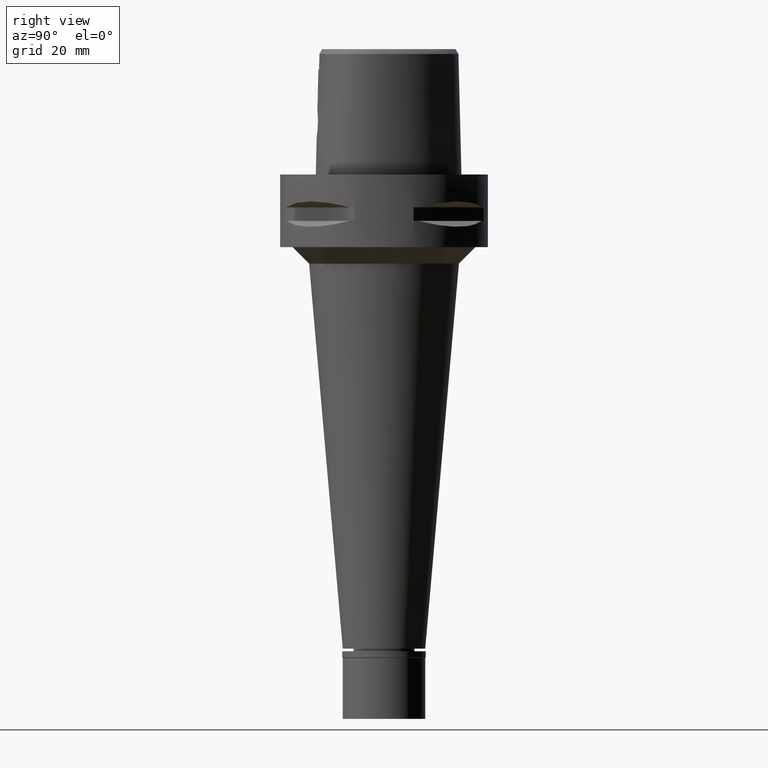
[diagram: clean part render]
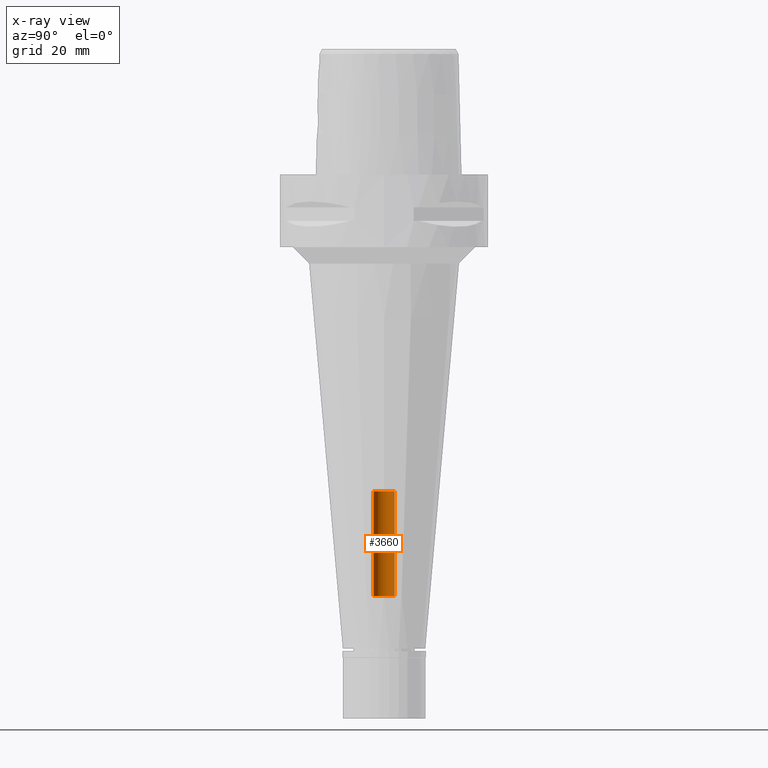
[diagram: x-ray — body ghosted, one internal face saturated and labeled with its STEP entity id]
A machine part, right view, then the same camera in x-ray: the body is ghosted and one INTERNAL B-rep face — a face not visible from any outside direction — is saturated and labeled: STEP entity #3660.
In plain terms, the highlighted cylindrical surface (edge-blend (fillet) strip) has radius 3.2 mm, axis along (0, 0, -1).
Its self-contained STEP definition (entity closure, byte-faithful):
#151 = EDGE_CURVE ( 'NONE', #1242, #304, #432, .T. ) ;
#221 = CARTESIAN_POINT ( 'NONE',  ( 0.0000000000000000000, -3.200000000000000178, -127.7999999999999972 ) ) ;
#304 = VERTEX_POINT ( 'NONE', #1400 ) ;
#432 = CIRCLE ( 'NONE', #3722, 3.200000000000000178 ) ;
#561 = CARTESIAN_POINT ( 'NONE',  ( 0.0000000000000000000, -3.200000000000000178, -127.7999999999999972 ) ) ;
#959 = DIRECTION ( 'NONE',  ( 0.0000000000000000000, 0.0000000000000000000, 1.000000000000000000 ) ) ;
#1053 = AXIS2_PLACEMENT_3D ( 'NONE', #3680, #959, #2522 ) ;
#1082 = FACE_OUTER_BOUND ( 'NONE', #2512, .T. ) ;
#1242 = VERTEX_POINT ( 'NONE', #221 ) ;
#1290 = VERTEX_POINT ( 'NONE', #2125 ) ;
#1400 = CARTESIAN_POINT ( 'NONE',  ( 0.0000000000000000000, 3.200000000000000178, -127.7999999999999972 ) ) ;
#1404 = VERTEX_POINT ( 'NONE', #2507 ) ;
#1496 = CYLINDRICAL_SURFACE ( 'NONE', #3659, 3.200000000000000178 ) ;
#1543 = DIRECTION ( 'NONE',  ( 0.0000000000000000000, 0.0000000000000000000, -1.000000000000000000 ) ) ;
#1721 = ORIENTED_EDGE ( 'NONE', *, *, #151, .T. ) ;
#1949 = VECTOR ( 'NONE', #4859, 1000.000000000000000 ) ;
#2125 = CARTESIAN_POINT ( 'NONE',  ( 0.0000000000000000000, 3.200000000000000178, -96.00000000000000000 ) ) ;
#2163 = DIRECTION ( 'NONE',  ( 0.0000000000000000000, 0.0000000000000000000, -1.000000000000000000 ) ) ;
#2507 = CARTESIAN_POINT ( 'NONE',  ( 0.0000000000000000000, -3.200000000000000178, -96.00000000000000000 ) ) ;
#2512 = EDGE_LOOP ( 'NONE', ( #3268, #4319, #1721, #4384 ) ) ;
#2522 = DIRECTION ( 'NONE',  ( 0.0000000000000000000, 1.000000000000000000, 0.0000000000000000000 ) ) ;
#2619 = CARTESIAN_POINT ( 'NONE',  ( 0.0000000000000000000, 3.200000000000000178, -127.7999999999999972 ) ) ;
#2658 = DIRECTION ( 'NONE',  ( 0.0000000000000000000, -1.000000000000000000, 0.0000000000000000000 ) ) ;
#3181 = EDGE_CURVE ( 'NONE', #304, #1290, #4591, .T. ) ;
#3268 = ORIENTED_EDGE ( 'NONE', *, *, #4604, .T. ) ;
#3659 = AXIS2_PLACEMENT_3D ( 'NONE', #4198, #1543, #2658 ) ;
#3660 = ADVANCED_FACE ( 'NONE', ( #1082 ), #1496, .F. ) ;
#3680 = CARTESIAN_POINT ( 'NONE',  ( 0.0000000000000000000, 0.0000000000000000000, -96.00000000000000000 ) ) ;
#3722 = AXIS2_PLACEMENT_3D ( 'NONE', #4520, #2163, #3734 ) ;
#3734 = DIRECTION ( 'NONE',  ( 0.0000000000000000000, -1.000000000000000000, 0.0000000000000000000 ) ) ;
#4181 = DIRECTION ( 'NONE',  ( 0.0000000000000000000, 0.0000000000000000000, 1.000000000000000000 ) ) ;
#4198 = CARTESIAN_POINT ( 'NONE',  ( 0.0000000000000000000, 0.0000000000000000000, 7.939999999999999503 ) ) ;
#4240 = CIRCLE ( 'NONE', #1053, 3.200000000000000178 ) ;
#4319 = ORIENTED_EDGE ( 'NONE', *, *, #4793, .F. ) ;
#4384 = ORIENTED_EDGE ( 'NONE', *, *, #3181, .T. ) ;
#4451 = LINE ( 'NONE', #561, #1949 ) ;
#4520 = CARTESIAN_POINT ( 'NONE',  ( 0.0000000000000000000, 0.0000000000000000000, -127.7999999999999972 ) ) ;
#4591 = LINE ( 'NONE', #2619, #4642 ) ;
#4604 = EDGE_CURVE ( 'NONE', #1290, #1404, #4240, .T. ) ;
#4642 = VECTOR ( 'NONE', #4181, 1000.000000000000000 ) ;
#4793 = EDGE_CURVE ( 'NONE', #1242, #1404, #4451, .T. ) ;
#4859 = DIRECTION ( 'NONE',  ( 0.0000000000000000000, 0.0000000000000000000, 1.000000000000000000 ) ) ;